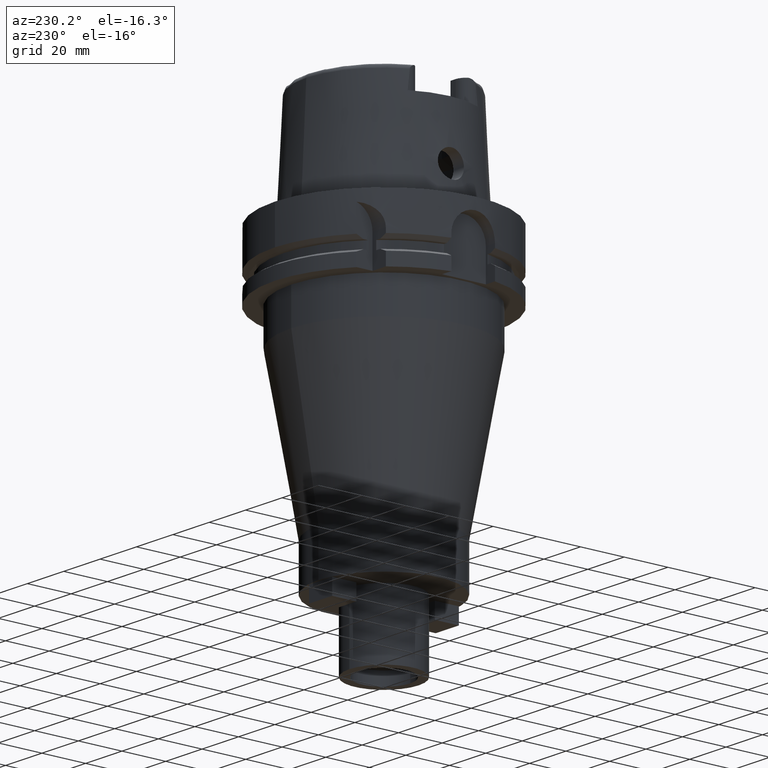
[diagram: clean part render]
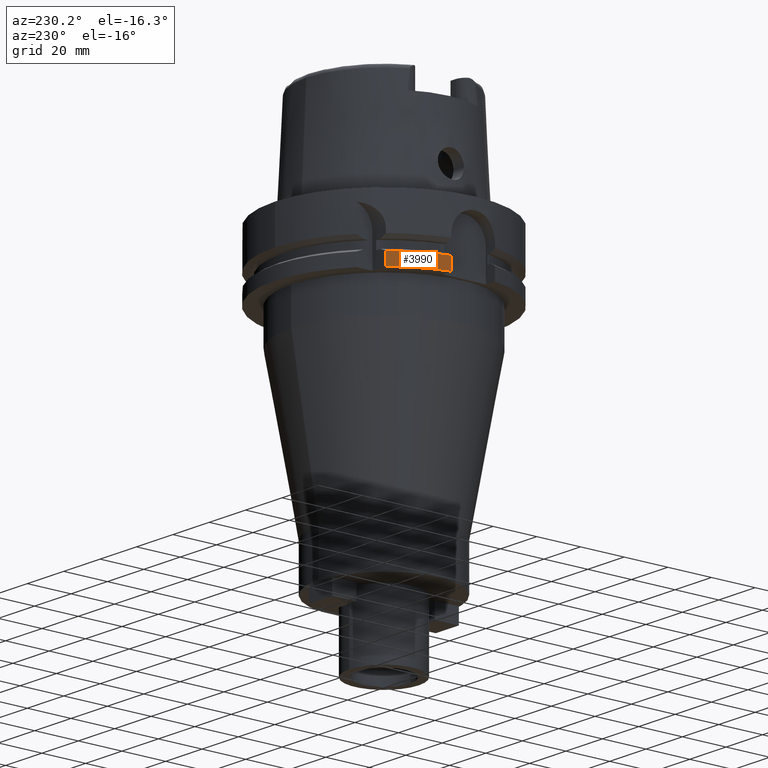
[diagram: same view with one face highlighted and labeled with its STEP entity id]
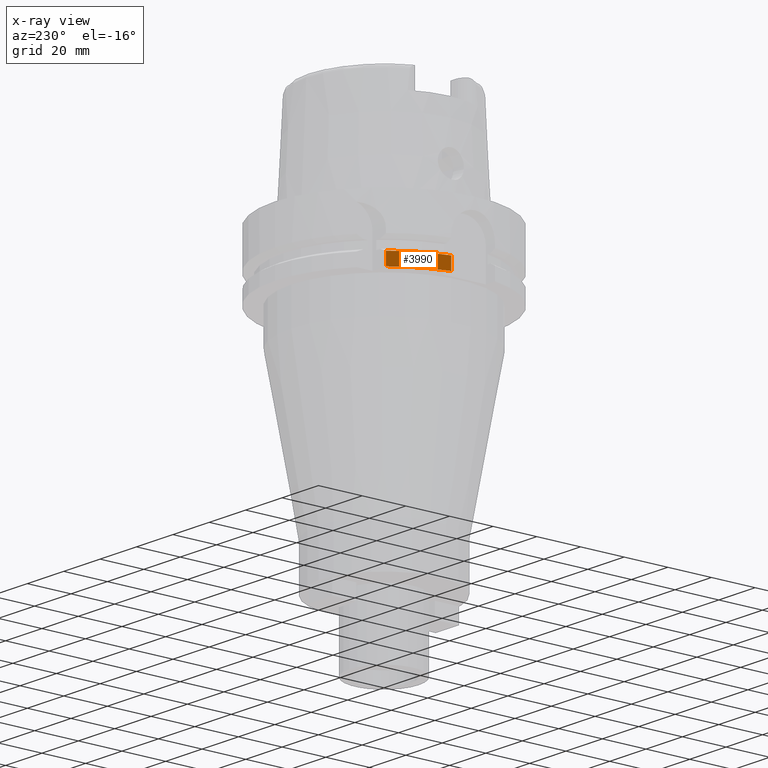
[diagram: x-ray of the same camera — body ghosted, the highlighted face saturated]
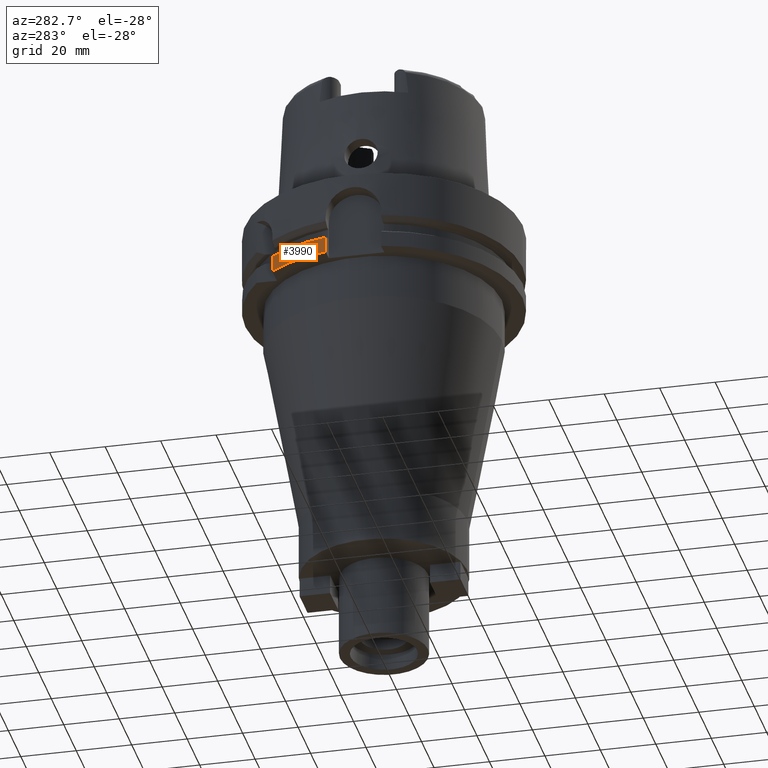
[diagram: same view with one face highlighted and labeled with its STEP entity id]
A machine part, auxiliary view. The second image highlights one B-rep face of the part: STEP entity #3990.
The next image is the same camera in x-ray: the body ghosted, the highlighted face saturated — about 0% of this face is hidden behind the body in this view.
A second angle (auxiliary view) of the same face is appended — the face is thin or edge-on in the first view.
In plain terms, the highlighted cylindrical surface (partial cylindrical patch) has radius 50 mm, axis along (0, 0, 1).
Its self-contained STEP definition (entity closure, byte-faithful):
#1276=CARTESIAN_POINT('',(0.E0,0.E0,-2.9E1));
#1277=DIRECTION('',(0.E0,0.E0,1.E0));
#1278=DIRECTION('',(-7.765951326142E-1,6.3E-1,0.E0));
#1279=AXIS2_PLACEMENT_3D('',#1276,#1277,#1278);
#1529=DIRECTION('',(-1.164835654148E-7,-1.435883620959E-7,1.E0));
#1530=VECTOR('',#1529,5.752407739009E0);
#1531=CARTESIAN_POINT('',(-3.882975663071E1,3.15E1,-2.9E1));
#1532=LINE('',#1531,#1530);
#1536=DIRECTION('',(-8.399427413532E-14,0.E0,-1.E0));
#1537=VECTOR('',#1536,5.752404735809E0);
#1538=CARTESIAN_POINT('',(-4.898979485566E1,1.E1,-2.324759526419E1));
#1539=LINE('',#1538,#1537);
#2196=CARTESIAN_POINT('',(0.E0,0.E0,-2.324759526419E1));
#2197=DIRECTION('',(0.E0,0.E0,-1.E0));
#2198=DIRECTION('',(-9.797958971133E-1,2.E-1,0.E0));
#2199=AXIS2_PLACEMENT_3D('',#2196,#2197,#2198);
#2637=CARTESIAN_POINT('',(-3.882975663071E1,3.15E1,-2.9E1));
#2638=VERTEX_POINT('',#2637);
#2639=CARTESIAN_POINT('',(-4.898979485566E1,1.E1,-2.9E1));
#2640=VERTEX_POINT('',#2639);
#2683=CARTESIAN_POINT('',(-3.882975730077E1,3.149999917402E1,
-2.324759226099E1));
#2684=VERTEX_POINT('',#2683);
#2685=CARTESIAN_POINT('',(-4.898979485566E1,1.E1,-2.324759526419E1));
#2686=VERTEX_POINT('',#2685);
#3977=CARTESIAN_POINT('',(0.E0,0.E0,-1.7575E2));
#3978=DIRECTION('',(0.E0,0.E0,1.E0));
#3979=DIRECTION('',(0.E0,1.E0,0.E0));
#3980=AXIS2_PLACEMENT_3D('',#3977,#3978,#3979);
#3981=CYLINDRICAL_SURFACE('',#3980,5.E1);
#3983=ORIENTED_EDGE('',*,*,#3982,.T.);
#3985=ORIENTED_EDGE('',*,*,#3984,.F.);
#3986=ORIENTED_EDGE('',*,*,#3957,.T.);
#3987=ORIENTED_EDGE('',*,*,#3749,.F.);
#3988=EDGE_LOOP('',(#3983,#3985,#3986,#3987));
#3989=FACE_OUTER_BOUND('',#3988,.F.);
#1280=CIRCLE('',#1279,5.E1);
#2200=CIRCLE('',#2199,5.E1);
#3749=EDGE_CURVE('',#2638,#2640,#1280,.T.);
#3957=EDGE_CURVE('',#2686,#2640,#1539,.T.);
#3982=EDGE_CURVE('',#2638,#2684,#1532,.T.);
#3984=EDGE_CURVE('',#2686,#2684,#2200,.T.);
#3990=ADVANCED_FACE('',(#3989),#3981,.T.);